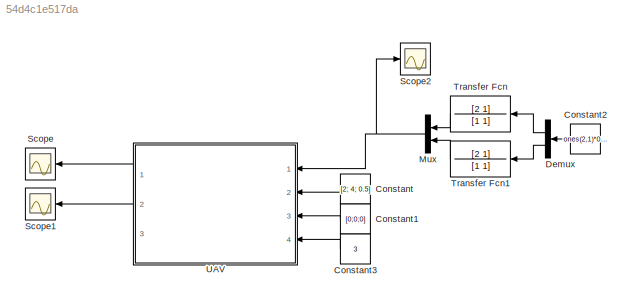
MODEL slx_54d4c1e517da
KIND model
CONFIG AbsTol = auto
CONFIG EnableMultiTasking = off
CONFIG FixedStep = auto
CONFIG MaxStep = auto
CONFIG MinStep = auto
CONFIG RelTol = 1e-3
CONFIG SampleTimeConstraint = Unconstrained
CONFIG Solver = VariableStepAuto
CONFIG SolverName = VariableStepAuto
CONFIG StartTime = 0.0
CONFIG StopTime = 10
BLOCK [Constant] Constant
  Value = [2; 4; 0.5]
BLOCK [Constant] Constant1
  Value = [0;0;0]
BLOCK [Constant] Constant2
  Value = ones(2,1)*0.01
BLOCK [Constant] Constant3
  Value = 3
BLOCK [Demux] Demux
  DisplayOption = bar
  Outputs = 2
  Ports = [1, 2]
BLOCK [Mux] Mux
  DisplayOption = bar
  Inputs = 2
  Ports = [2, 1]
BLOCK [Scope] Scope
  Floating = off
  NumInputPorts = 1
  Ports = [1]
  ScopeSpecificationString = Simulink.scopes.TimeScopeBlockCfg('CurrentConfiguration', extmgr.ConfigurationSet(extmgr.Configuration('Core','General UI',true),extmgr.Configuration('Core','Source UI',true),extmgr.Configuration('Sources','WiredSimulink',true),extmgr.Configuration('Visuals','Time Domain',true,'SerializedDisplays',{struct('MinYLimReal','-25.0076','MaxYLimReal','7.22307','YLabelReal','','MinYLimMag','0.00000','MaxY...<+1416ch>
BLOCK [Scope] Scope1
  Floating = off
  NumInputPorts = 1
  Ports = [1]
  ScopeSpecificationString = Simulink.scopes.TimeScopeBlockCfg('CurrentConfiguration', extmgr.ConfigurationSet(extmgr.Configuration('Core','General UI',true),extmgr.Configuration('Core','Source UI',true),extmgr.Configuration('Sources','WiredSimulink',true,'DataLoggingVariableName','ScopeData1'),extmgr.Configuration('Visuals','Time Domain',true,'SerializedDisplays',{struct('MinYLimReal','-0.50029','MaxYLimReal','4.50203','YLab...<+1441ch>
BLOCK [Scope] Scope2
  Floating = off
  NumInputPorts = 1
  Ports = [1]
  ScopeSpecificationString = Simulink.scopes.TimeScopeBlockCfg('CurrentConfiguration', extmgr.ConfigurationSet(extmgr.Configuration('Core','General UI',true),extmgr.Configuration('Core','Source UI',true),extmgr.Configuration('Sources','WiredSimulink',true,'DataLoggingVariableName','ScopeData1'),extmgr.Configuration('Visuals','Time Domain',true,'SerializedDisplays',{struct('MinYLimReal','0.00875','MaxYLimReal','0.02125','YLabe...<+1385ch>
BLOCK [TransferFcn] Transfer Fcn
  Denominator = [1 1]
  Numerator = [2 1]
BLOCK [TransferFcn] Transfer Fcn1
  Denominator = [1 1]
  Numerator = [2 1]
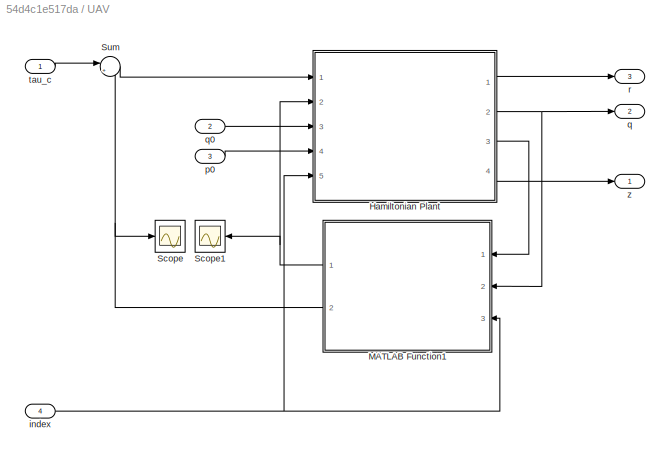
BLOCK [SubSystem] UAV
  Ports = [4, 3]
  RequestExecContextInheritance = off
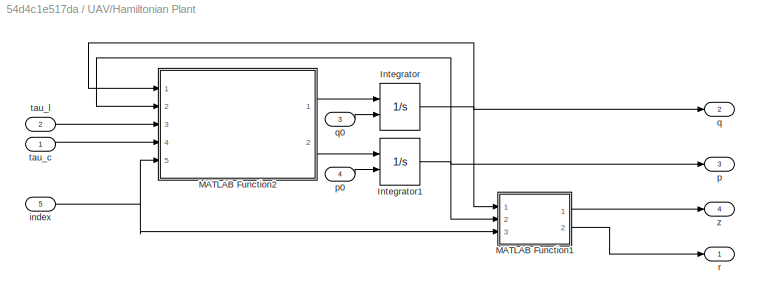
BLOCK [SubSystem] UAV/Hamiltonian Plant
  Ports = [5, 4]
  RequestExecContextInheritance = off
BLOCK [Integrator] UAV/Hamiltonian Plant/Integrator
  InitialCondition = q01
  InitialConditionSource = external
  Ports = [2, 1]
BLOCK [Integrator] UAV/Hamiltonian Plant/Integrator1
  InitialCondition = p02
  InitialConditionSource = external
  Ports = [2, 1]
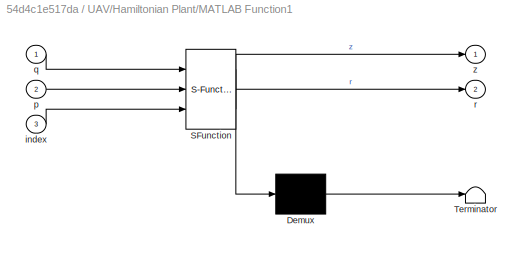
BLOCK [SubSystem] UAV/Hamiltonian Plant/MATLAB Function1
  ErrorFcn = Stateflow.Translate.translate
  PermitHierarchicalResolution = ExplicitOnly
  Ports = [3, 2]
  RequestExecContextInheritance = off
  SFBlockType = MATLAB Function
  TreatAsAtomicUnit = on
BLOCK [Demux] UAV/Hamiltonian Plant/MATLAB Function1/ Demux 
  Outputs = 1
  Ports = [1, 1]
BLOCK [S-Function] UAV/Hamiltonian Plant/MATLAB Function1/ SFunction 
  EnableBusSupport = on
  FunctionName = sf_sfun
  PortCounts = [3 3]
  Ports = [3, 3]
  SFcnIsStateOwnerBlock = off
  SFunctionDeploymentMode = off
  Tag = Stateflow S-Function SingleAgent_Drone 1
BLOCK [Terminator] UAV/Hamiltonian Plant/MATLAB Function1/ Terminator 
BLOCK [Inport] UAV/Hamiltonian Plant/MATLAB Function1/index
  IconDisplay = Port number
  Port = 3
BLOCK [Inport] UAV/Hamiltonian Plant/MATLAB Function1/p
  IconDisplay = Port number
  Port = 2
BLOCK [Inport] UAV/Hamiltonian Plant/MATLAB Function1/q
  IconDisplay = Port number
BLOCK [Outport] UAV/Hamiltonian Plant/MATLAB Function1/r
  IconDisplay = Port number
  Port = 2
BLOCK [Outport] UAV/Hamiltonian Plant/MATLAB Function1/z
  IconDisplay = Port number
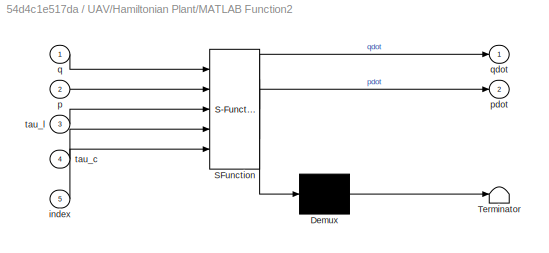
BLOCK [SubSystem] UAV/Hamiltonian Plant/MATLAB Function2
  ErrorFcn = Stateflow.Translate.translate
  PermitHierarchicalResolution = ExplicitOnly
  Ports = [5, 2]
  RequestExecContextInheritance = off
  SFBlockType = MATLAB Function
  TreatAsAtomicUnit = on
BLOCK [Demux] UAV/Hamiltonian Plant/MATLAB Function2/ Demux 
  Outputs = 1
  Ports = [1, 1]
BLOCK [S-Function] UAV/Hamiltonian Plant/MATLAB Function2/ SFunction 
  EnableBusSupport = on
  FunctionName = sf_sfun
  PortCounts = [5 3]
  Ports = [5, 3]
  SFcnIsStateOwnerBlock = off
  SFunctionDeploymentMode = off
  Tag = Stateflow S-Function SingleAgent_Drone 11
BLOCK [Terminator] UAV/Hamiltonian Plant/MATLAB Function2/ Terminator 
BLOCK [Inport] UAV/Hamiltonian Plant/MATLAB Function2/index
  IconDisplay = Port number
  Port = 5
BLOCK [Inport] UAV/Hamiltonian Plant/MATLAB Function2/p
  IconDisplay = Port number
  Port = 2
BLOCK [Outport] UAV/Hamiltonian Plant/MATLAB Function2/pdot
  IconDisplay = Port number
  Port = 2
BLOCK [Inport] UAV/Hamiltonian Plant/MATLAB Function2/q
  IconDisplay = Port number
BLOCK [Outport] UAV/Hamiltonian Plant/MATLAB Function2/qdot
  IconDisplay = Port number
BLOCK [Inport] UAV/Hamiltonian Plant/MATLAB Function2/tau_c
  IconDisplay = Port number
  Port = 4
BLOCK [Inport] UAV/Hamiltonian Plant/MATLAB Function2/tau_l
  IconDisplay = Port number
  Port = 3
BLOCK [Inport] UAV/Hamiltonian Plant/index
  IconDisplay = Port number
  Port = 5
BLOCK [Outport] UAV/Hamiltonian Plant/p
  IconDisplay = Port number
  Port = 3
BLOCK [Inport] UAV/Hamiltonian Plant/p0
  IconDisplay = Port number
  Port = 4
BLOCK [Outport] UAV/Hamiltonian Plant/q
  IconDisplay = Port number
  Port = 2
BLOCK [Inport] UAV/Hamiltonian Plant/q0
  IconDisplay = Port number
  Port = 3
BLOCK [Outport] UAV/Hamiltonian Plant/r
  IconDisplay = Port number
BLOCK [Inport] UAV/Hamiltonian Plant/tau_c
  IconDisplay = Port number
BLOCK [Inport] UAV/Hamiltonian Plant/tau_l
  IconDisplay = Port number
  Port = 2
BLOCK [Outport] UAV/Hamiltonian Plant/z
  IconDisplay = Port number
  Port = 4
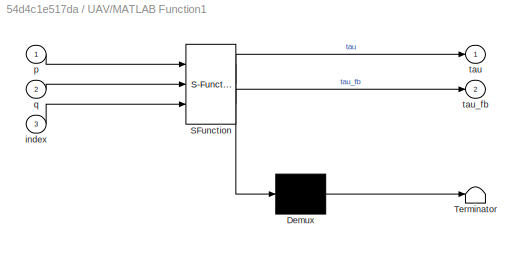
BLOCK [SubSystem] UAV/MATLAB Function1
  ErrorFcn = Stateflow.Translate.translate
  PermitHierarchicalResolution = ExplicitOnly
  Ports = [3, 2]
  RequestExecContextInheritance = off
  SFBlockType = MATLAB Function
  TreatAsAtomicUnit = on
BLOCK [Demux] UAV/MATLAB Function1/ Demux 
  Outputs = 1
  Ports = [1, 1]
BLOCK [S-Function] UAV/MATLAB Function1/ SFunction 
  EnableBusSupport = on
  FunctionName = sf_sfun
  PortCounts = [3 3]
  Ports = [3, 3]
  SFcnIsStateOwnerBlock = off
  SFunctionDeploymentMode = off
  Tag = Stateflow S-Function SingleAgent_Drone 13
BLOCK [Terminator] UAV/MATLAB Function1/ Terminator 
BLOCK [Inport] UAV/MATLAB Function1/index
  IconDisplay = Port number
  Port = 3
BLOCK [Inport] UAV/MATLAB Function1/p
  IconDisplay = Port number
BLOCK [Inport] UAV/MATLAB Function1/q
  IconDisplay = Port number
  Port = 2
BLOCK [Outport] UAV/MATLAB Function1/tau
  IconDisplay = Port number
BLOCK [Outport] UAV/MATLAB Function1/tau_fb
  IconDisplay = Port number
  Port = 2
BLOCK [Scope] UAV/Scope
  Floating = off
  NumInputPorts = 1
  Ports = [1]
  ScopeSpecificationString = Simulink.scopes.TimeScopeBlockCfg('CurrentConfiguration', extmgr.ConfigurationSet(extmgr.Configuration('Core','General UI',true),extmgr.Configuration('Core','Source UI',true),extmgr.Configuration('Sources','WiredSimulink',true,'DataLoggingVariableName','ScopeData1'),extmgr.Configuration('Visuals','Time Domain',true,'SerializedDisplays',{struct('MinYLimReal','-1.00000','MaxYLimReal','1.00000','YLab...<+1412ch>
BLOCK [Scope] UAV/Scope1
  Floating = off
  NumInputPorts = 1
  Ports = [1]
  ScopeSpecificationString = Simulink.scopes.TimeScopeBlockCfg('CurrentConfiguration', extmgr.ConfigurationSet(extmgr.Configuration('Core','General UI',true),extmgr.Configuration('Core','Source UI',true),extmgr.Configuration('Sources','WiredSimulink',true,'DataLoggingVariableName','ScopeData2'),extmgr.Configuration('Visuals','Time Domain',true,'SerializedDisplays',{struct('MinYLimReal','-0.00218','MaxYLimReal','0.00774','YLab...<+1461ch>
BLOCK [Sum] UAV/Sum
  IconShape = round
  InputSameDT = off
  Inputs = |++
  OutDataTypeStr = Inherit: Inherit via internal rule
  Ports = [2, 1]
  SaturateOnIntegerOverflow = off
BLOCK [Inport] UAV/index
  IconDisplay = Port number
  Port = 4
BLOCK [Inport] UAV/p0
  IconDisplay = Port number
  Port = 3
BLOCK [Outport] UAV/q
  IconDisplay = Port number
  Port = 2
BLOCK [Inport] UAV/q0
  IconDisplay = Port number
  Port = 2
BLOCK [Outport] UAV/r
  IconDisplay = Port number
  Port = 3
BLOCK [Inport] UAV/tau_c
  IconDisplay = Port number
BLOCK [Outport] UAV/z
  IconDisplay = Port number
LINE Constant1:1 -> UAV:3
LINE Constant2:1 -> Demux:1
LINE Constant3:1 -> UAV:4
LINE Constant:1 -> UAV:2
LINE Demux:1 -> Transfer Fcn:1
LINE Demux:2 -> Transfer Fcn1:1
NET Mux:1 -> Scope2:1, UAV:1
LINE Transfer Fcn1:1 -> Mux:2
LINE Transfer Fcn:1 -> Mux:1
NET UAV/Hamiltonian Plant/Integrator1:1 -> UAV/Hamiltonian Plant/MATLAB Function1:2, UAV/Hamiltonian Plant/MATLAB Function2:2, UAV/Hamiltonian Plant/p:1
NET UAV/Hamiltonian Plant/Integrator:1 -> UAV/Hamiltonian Plant/MATLAB Function1:1, UAV/Hamiltonian Plant/MATLAB Function2:1, UAV/Hamiltonian Plant/q:1
LINE UAV/Hamiltonian Plant/MATLAB Function1:1 -> UAV/Hamiltonian Plant/z:1
LINE UAV/Hamiltonian Plant/MATLAB Function1:2 -> UAV/Hamiltonian Plant/r:1
LINE UAV/Hamiltonian Plant/MATLAB Function2:1 -> UAV/Hamiltonian Plant/Integrator:1
LINE UAV/Hamiltonian Plant/MATLAB Function2:2 -> UAV/Hamiltonian Plant/Integrator1:1
NET UAV/Hamiltonian Plant/index:1 -> UAV/Hamiltonian Plant/MATLAB Function1:3, UAV/Hamiltonian Plant/MATLAB Function2:5
LINE UAV/Hamiltonian Plant/p0:1 -> UAV/Hamiltonian Plant/Integrator1:2
LINE UAV/Hamiltonian Plant/q0:1 -> UAV/Hamiltonian Plant/Integrator:2
LINE UAV/Hamiltonian Plant/tau_c:1 -> UAV/Hamiltonian Plant/MATLAB Function2:4
LINE UAV/Hamiltonian Plant/tau_l:1 -> UAV/Hamiltonian Plant/MATLAB Function2:3
LINE UAV/Hamiltonian Plant:1 -> UAV/r:1
NET UAV/Hamiltonian Plant:2 -> UAV/MATLAB Function1:2, UAV/q:1
LINE UAV/Hamiltonian Plant:3 -> UAV/MATLAB Function1:1
LINE UAV/Hamiltonian Plant:4 -> UAV/z:1
NET UAV/MATLAB Function1:1 -> UAV/Hamiltonian Plant:2, UAV/Scope1:1
NET UAV/MATLAB Function1:2 -> UAV/Scope:1, UAV/Sum:2
LINE UAV/Sum:1 -> UAV/Hamiltonian Plant:1
NET UAV/index:1 -> UAV/Hamiltonian Plant:5, UAV/MATLAB Function1:3
LINE UAV/p0:1 -> UAV/Hamiltonian Plant:4
LINE UAV/q0:1 -> UAV/Hamiltonian Plant:3
LINE UAV/tau_c:1 -> UAV/Sum:1
LINE UAV:1 -> Scope:1
LINE UAV:2 -> Scope1:1
note: NET lines group one-source signal fan-out (src -> all destinations, sorted); 1:1 wires keep LINE
CHART UAV/Hamiltonian Plant/MATLAB Function1 states=1 transitions=1
  STATE_LABEL 'eML_blk_kernel()'
  STATE_LABEL "SCRIPT:\nfunction [z, r] = toz(q, p, index)\n\n    coder.extrinsic('UAV_z');\n    z = zeros(2, 1);\n    r = zeros(2, 1);    \n    [z, r] = UAV_z(q, p, index);\n"
CHART UAV/Hamiltonian Plant/MATLAB Function2 states=1 transitions=1
  STATE_LABEL 'eML_blk_kernel()'
  STATE_LABEL "SCRIPT:\nfunction [qdot, pdot] = fcn(q, p, tau_l, tau_c, index)\n\n    coder.extrinsic('UAV_Dynamics');\n    qdot = zeros(3, 1);\n    pdot = zeros(3, 1);\n    [qdot, pdot] = UAV_Dynamics(q, p, tau_l, tau_c, index);\n"
CHART UAV/MATLAB Function1 states=1 transitions=1
  STATE_LABEL 'eML_blk_kernel()'
  STATE_LABEL "SCRIPT:\nfunction [tau, tau_fb] = LocalControl(p, q, index)\n    \n\ncoder.extrinsic('UAV_Control');\ntau = zeros(2, 1);\ntau_fb = zeros(2, 1);\n[tau, tau_fb] = UAV_Control(q, p, index);\n\n"
